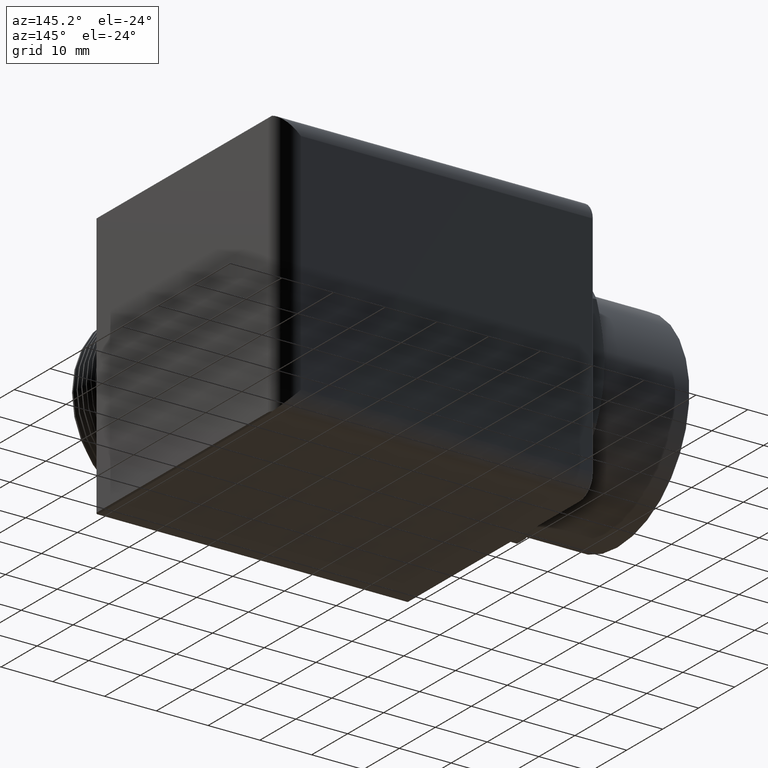
[diagram: clean part render]
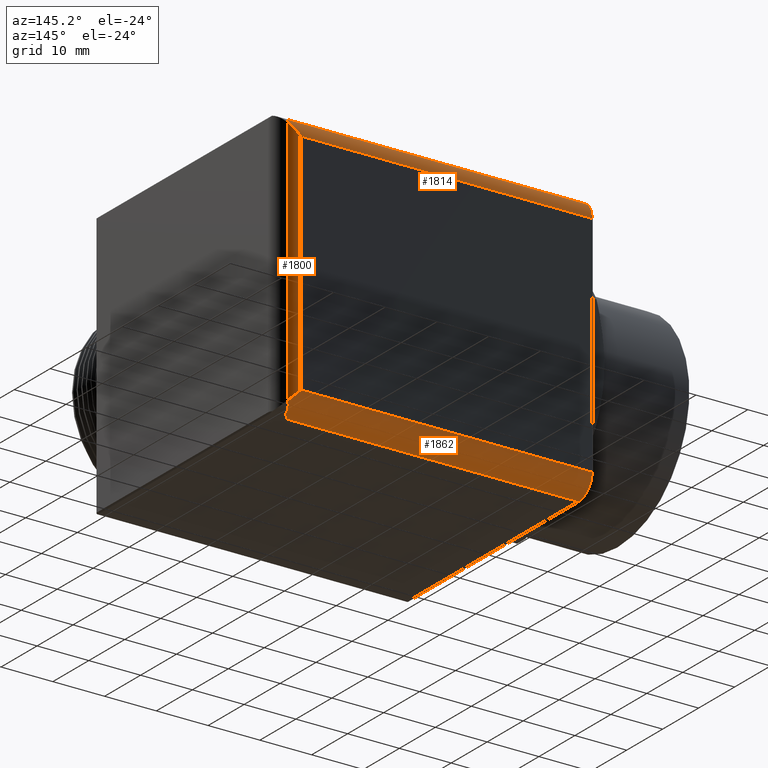
[diagram: same view with one multi-face feature highlighted, each face labeled with its STEP entity id]
A machine part, auxiliary view. The highlighted faces form ONE feature: a constant-radius fillet chain: 3 tangent blend faces with common blend radius 3.7465 mm. The faces share edges in the B-rep.
Their STEP definitions:
[1] entity #1814 (Cylinder):
#1463 = VERTEX_POINT ( 'NONE', #2725 ) ;
#1465 = EDGE_CURVE ( 'NONE', #1463, #1466, #2722, .T. ) ;
#1466 = VERTEX_POINT ( 'NONE', #2724 ) ;
#1496 = EDGE_CURVE ( 'NONE', #1497, #1463, #2839, .T. ) ;
#1497 = VERTEX_POINT ( 'NONE', #2838 ) ;
#1761 = VERTEX_POINT ( 'NONE', #3313 ) ;
#1763 = EDGE_CURVE ( 'NONE', #1761, #1764, #3312, .T. ) ;
#1764 = VERTEX_POINT ( 'NONE', #3308 ) ;
#1794 = EDGE_CURVE ( 'NONE', #1764, #1497, #3376, .T. ) ;
#1795 = ORIENTED_EDGE ( 'NONE', *, *, #1763, .F. ) ;
#1796 = ORIENTED_EDGE ( 'NONE', *, *, #1797, .T. ) ;
#1797 = EDGE_CURVE ( 'NONE', #1761, #1825, #3370, .T. ) ;
#1798 = ORIENTED_EDGE ( 'NONE', *, *, #1824, .F. ) ;
#1799 = ORIENTED_EDGE ( 'NONE', *, *, #1465, .F. ) ;
#1814 = ADVANCED_FACE ( 'NONE', ( #3392 ), #3391, .T. ) ;
#1815 = EDGE_LOOP ( 'NONE', ( #1816, #1817, #1795, #1796, #1798, #1799 ) ) ;
#1816 = ORIENTED_EDGE ( 'NONE', *, *, #1496, .F. ) ;
#1817 = ORIENTED_EDGE ( 'NONE', *, *, #1794, .F. ) ;
#1824 = EDGE_CURVE ( 'NONE', #1466, #1825, #3437, .T. ) ;
#1825 = VERTEX_POINT ( 'NONE', #3433 ) ;
#2721 = CARTESIAN_POINT ( 'NONE',  ( 1.844666666666666700, 0.9166666666666668500, 1.006564333633353400 ) ) ;
#2722 =( BOUNDED_CURVE ( )  B_SPLINE_CURVE ( 3, ( #2721, #2764, #2763, #2762 ),
 .UNSPECIFIED., .F., .T. ) 
 B_SPLINE_CURVE_WITH_KNOTS ( ( 4, 4 ),
 ( 4.372552070930564300, 4.712388980384689700 ),
 .UNSPECIFIED. ) 
 CURVE ( )  GEOMETRIC_REPRESENTATION_ITEM ( )  RATIONAL_B_SPLINE_CURVE ( ( 1.000000000000000000, 0.9903990397689922400, 0.9903990397689922400, 1.000000000000000000 ) ) 
 REPRESENTATION_ITEM ( '' )  );
#2724 = CARTESIAN_POINT ( 'NONE',  ( 1.795499999999999200, 0.8674999999999999400, 1.014999999999999900 ) ) ;
#2725 = CARTESIAN_POINT ( 'NONE',  ( 1.844666666666666700, 0.9166666666666668500, 1.006564333633353400 ) ) ;
#2762 = CARTESIAN_POINT ( 'NONE',  ( 1.795499999999999200, 0.8674999999999999400, 1.014999999999999900 ) ) ;
#2763 = CARTESIAN_POINT ( 'NONE',  ( 1.812289557111489900, 0.8842895571114904900, 1.014999999999999900 ) ) ;
#2764 = CARTESIAN_POINT ( 'NONE',  ( 1.828837320417795000, 0.9008373204177953000, 1.012160852670517500 ) ) ;
#2830 = CARTESIAN_POINT ( 'NONE',  ( 1.844666666666666700, 0.9166666666666668500, 1.006564333633353400 ) ) ;
#2831 = CARTESIAN_POINT ( 'NONE',  ( 1.844666666666666200, 0.9247379555830722600, 1.003710702070501400 ) ) ;
#2832 = CARTESIAN_POINT ( 'NONE',  ( 1.845642229532628200, 0.9323471729041455900, 1.000238020481493600 ) ) ;
#2833 = CARTESIAN_POINT ( 'NONE',  ( 1.849094089113427800, 0.9467680561163973600, 0.9921640011973513800 ) ) ;
#2834 = CARTESIAN_POINT ( 'NONE',  ( 1.851602629892202600, 0.9535805845397226100, 0.9875346601012713300 ) ) ;
#2835 = CARTESIAN_POINT ( 'NONE',  ( 1.860576552260889700, 0.9720066008092619300, 0.9727728218896291000 ) ) ;
#2836 = CARTESIAN_POINT ( 'NONE',  ( 1.868673982908408000, 0.9821408473058225200, 0.9613966408289765800 ) ) ;
#2837 = CARTESIAN_POINT ( 'NONE',  ( 1.877561747821720400, 0.9900647565348390500, 0.9495617478217202000 ) ) ;
#2838 = CARTESIAN_POINT ( 'NONE',  ( 1.877561747821720400, 0.9900647565348390500, 0.9495617478217202000 ) ) ;
#2839 = B_SPLINE_CURVE_WITH_KNOTS ( 'NONE', 3,
 ( #2837, #2836, #2835, #2834, #2833, #2832, #2831, #2830 ),
 .UNSPECIFIED., .F., .F.,
 ( 4, 2, 2, 4 ),
 ( 0.002773185288328189100, 0.004065684369866610400, 0.004711933910635828600, 0.005358183451405046000 ),
 .UNSPECIFIED. ) ;
#3308 = CARTESIAN_POINT ( 'NONE',  ( 1.795500000000000100, 1.014999999999999900, 0.8674999999999999400 ) ) ;
#3309 = DIRECTION ( 'NONE',  ( 1.000000000000000000, 0.0000000000000000000, 0.0000000000000000000 ) ) ;
#3310 = VECTOR ( 'NONE', #3309, 39.37007874015748100 ) ;
#3311 = CARTESIAN_POINT ( 'NONE',  ( -0.4299000000000000600, 1.014999999999999900, 0.8674999999999999400 ) ) ;
#3312 = LINE ( 'NONE', #3311, #3310 ) ;
#3313 = CARTESIAN_POINT ( 'NONE',  ( -0.4199000000000000000, 1.014999999999999900, 0.8674999999999999400 ) ) ;
#3366 = DIRECTION ( 'NONE',  ( 0.0000000000000000000, 0.0000000000000000000, -1.000000000000000000 ) ) ;
#3367 = DIRECTION ( 'NONE',  ( 1.000000000000000000, 0.0000000000000000000, 0.0000000000000000000 ) ) ;
#3368 = CARTESIAN_POINT ( 'NONE',  ( -0.4199000000000000500, 0.8674999999999999400, 0.8674999999999999400 ) ) ;
#3369 = AXIS2_PLACEMENT_3D ( 'NONE', #3368, #3367, #3366 ) ;
#3370 = CIRCLE ( 'NONE', #3369, 0.1474999999999999900 ) ;
#3372 = CARTESIAN_POINT ( 'NONE',  ( 1.877561747821720400, 0.9900647565348390500, 0.9495617478217202000 ) ) ;
#3373 = CARTESIAN_POINT ( 'NONE',  ( 1.853101530997177700, 1.006441798365372400, 0.9251015309971777300 ) ) ;
#3374 = CARTESIAN_POINT ( 'NONE',  ( 1.824936536926457000, 1.014999999999999900, 0.8969365369264571400 ) ) ;
#3375 = CARTESIAN_POINT ( 'NONE',  ( 1.795500000000000100, 1.014999999999999900, 0.8674999999999999400 ) ) ;
#3376 =( BOUNDED_CURVE ( )  B_SPLINE_CURVE ( 3, ( #3375, #3374, #3373, #3372 ),
 .UNSPECIFIED., .F., .T. ) 
 B_SPLINE_CURVE_WITH_KNOTS ( ( 4, 4 ),
 ( 4.712388980384689700, 5.302376716956534800 ),
 .UNSPECIFIED. ) 
 CURVE ( )  GEOMETRIC_REPRESENTATION_ITEM ( )  RATIONAL_B_SPLINE_CURVE ( ( 1.000000000000000000, 0.9712026166911058600, 0.9712026166911058600, 1.000000000000000000 ) ) 
 REPRESENTATION_ITEM ( '' )  );
#3386 = DIRECTION ( 'NONE',  ( 0.0000000000000000000, 0.0000000000000000000, 1.000000000000000000 ) ) ;
#3387 = DIRECTION ( 'NONE',  ( -1.000000000000000000, 0.0000000000000000000, 0.0000000000000000000 ) ) ;
#3388 = CARTESIAN_POINT ( 'NONE',  ( 1.943000000000000100, 0.8674999999999999400, 0.8674999999999999400 ) ) ;
#3389 = AXIS2_PLACEMENT_3D ( 'NONE', #3388, #3387, #3386 ) ;
#3391 = CYLINDRICAL_SURFACE ( 'NONE', #3389, 0.1474999999999999900 ) ;
#3392 = FACE_OUTER_BOUND ( 'NONE', #1815, .T. ) ;
#3433 = CARTESIAN_POINT ( 'NONE',  ( -0.4199000000000000500, 0.8674999999999999400, 1.014999999999999900 ) ) ;
#3434 = DIRECTION ( 'NONE',  ( -1.000000000000000000, 0.0000000000000000000, 0.0000000000000000000 ) ) ;
#3435 = VECTOR ( 'NONE', #3434, 39.37007874015748100 ) ;
#3436 = CARTESIAN_POINT ( 'NONE',  ( 1.943000000000000100, 0.8674999999999999400, 1.014999999999999900 ) ) ;
#3437 = LINE ( 'NONE', #3436, #3435 ) ;
[2] entity #1800 (Cylinder):
#1476 = EDGE_CURVE ( 'NONE', #1500, #1497, #2788, .T. ) ;
#1497 = VERTEX_POINT ( 'NONE', #2838 ) ;
#1500 = VERTEX_POINT ( 'NONE', #2840 ) ;
#1757 = VERTEX_POINT ( 'NONE', #3319 ) ;
#1764 = VERTEX_POINT ( 'NONE', #3308 ) ;
#1794 = EDGE_CURVE ( 'NONE', #1764, #1497, #3376, .T. ) ;
#1800 = ADVANCED_FACE ( 'NONE', ( #3371 ), #3364, .T. ) ;
#1801 = EDGE_LOOP ( 'NONE', ( #1802, #1803, #1805, #1861 ) ) ;
#1802 = ORIENTED_EDGE ( 'NONE', *, *, #1476, .F. ) ;
#1803 = ORIENTED_EDGE ( 'NONE', *, *, #1804, .F. ) ;
#1804 = EDGE_CURVE ( 'NONE', #1757, #1500, #3360, .T. ) ;
#1805 = ORIENTED_EDGE ( 'NONE', *, *, #1818, .F. ) ;
#1818 = EDGE_CURVE ( 'NONE', #1764, #1757, #3390, .T. ) ;
#1861 = ORIENTED_EDGE ( 'NONE', *, *, #1794, .T. ) ;
#2784 = DIRECTION ( 'NONE',  ( 0.0000000000000000000, 0.0000000000000000000, 1.000000000000000000 ) ) ;
#2785 = VECTOR ( 'NONE', #2784, 39.37007874015748100 ) ;
#2786 = CARTESIAN_POINT ( 'NONE',  ( 1.877561747821720400, 0.9900647565348390500, -0.0001968503937008476800 ) ) ;
#2788 = LINE ( 'NONE', #2786, #2785 ) ;
#2838 = CARTESIAN_POINT ( 'NONE',  ( 1.877561747821720400, 0.9900647565348390500, 0.9495617478217202000 ) ) ;
#2840 = CARTESIAN_POINT ( 'NONE',  ( 1.877561747821720400, 0.9900647565348390500, -0.9495617478217202000 ) ) ;
#3308 = CARTESIAN_POINT ( 'NONE',  ( 1.795500000000000100, 1.014999999999999900, 0.8674999999999999400 ) ) ;
#3319 = CARTESIAN_POINT ( 'NONE',  ( 1.795500000000000100, 1.014999999999999900, -0.8674999999999999400 ) ) ;
#3358 = CARTESIAN_POINT ( 'NONE',  ( 1.824936536926457000, 1.014999999999999900, -0.8969365369264571400 ) ) ;
#3359 = CARTESIAN_POINT ( 'NONE',  ( 1.795500000000000100, 1.014999999999999900, -0.8674999999999999400 ) ) ;
#3360 =( BOUNDED_CURVE ( )  B_SPLINE_CURVE ( 3, ( #3359, #3358, #3403, #3402 ),
 .UNSPECIFIED., .F., .T. ) 
 B_SPLINE_CURVE_WITH_KNOTS ( ( 4, 4 ),
 ( 1.570796326794896600, 2.160784063366741700 ),
 .UNSPECIFIED. ) 
 CURVE ( )  GEOMETRIC_REPRESENTATION_ITEM ( )  RATIONAL_B_SPLINE_CURVE ( ( 1.000000000000000000, 0.9712026166911058600, 0.9712026166911058600, 1.000000000000000000 ) ) 
 REPRESENTATION_ITEM ( '' )  );
#3361 = DIRECTION ( 'NONE',  ( 1.000000000000000000, 0.0000000000000000000, 0.0000000000000000000 ) ) ;
#3362 = DIRECTION ( 'NONE',  ( 0.0000000000000000000, 0.0000000000000000000, 1.000000000000000000 ) ) ;
#3363 = AXIS2_PLACEMENT_3D ( 'NONE', #3365, #3362, #3361 ) ;
#3364 = CYLINDRICAL_SURFACE ( 'NONE', #3363, 0.1474999999999999900 ) ;
#3365 = CARTESIAN_POINT ( 'NONE',  ( 1.795500000000000100, 0.8674999999999999400, 1.014999999999999900 ) ) ;
#3371 = FACE_OUTER_BOUND ( 'NONE', #1801, .T. ) ;
#3372 = CARTESIAN_POINT ( 'NONE',  ( 1.877561747821720400, 0.9900647565348390500, 0.9495617478217202000 ) ) ;
#3373 = CARTESIAN_POINT ( 'NONE',  ( 1.853101530997177700, 1.006441798365372400, 0.9251015309971777300 ) ) ;
#3374 = CARTESIAN_POINT ( 'NONE',  ( 1.824936536926457000, 1.014999999999999900, 0.8969365369264571400 ) ) ;
#3375 = CARTESIAN_POINT ( 'NONE',  ( 1.795500000000000100, 1.014999999999999900, 0.8674999999999999400 ) ) ;
#3376 =( BOUNDED_CURVE ( )  B_SPLINE_CURVE ( 3, ( #3375, #3374, #3373, #3372 ),
 .UNSPECIFIED., .F., .T. ) 
 B_SPLINE_CURVE_WITH_KNOTS ( ( 4, 4 ),
 ( 4.712388980384689700, 5.302376716956534800 ),
 .UNSPECIFIED. ) 
 CURVE ( )  GEOMETRIC_REPRESENTATION_ITEM ( )  RATIONAL_B_SPLINE_CURVE ( ( 1.000000000000000000, 0.9712026166911058600, 0.9712026166911058600, 1.000000000000000000 ) ) 
 REPRESENTATION_ITEM ( '' )  );
#3383 = DIRECTION ( 'NONE',  ( 0.0000000000000000000, 0.0000000000000000000, -1.000000000000000000 ) ) ;
#3384 = VECTOR ( 'NONE', #3383, 39.37007874015748100 ) ;
#3385 = CARTESIAN_POINT ( 'NONE',  ( 1.795500000000000100, 1.014999999999999900, -1.014999999999999900 ) ) ;
#3390 = LINE ( 'NONE', #3385, #3384 ) ;
#3402 = CARTESIAN_POINT ( 'NONE',  ( 1.877561747821720400, 0.9900647565348390500, -0.9495617478217202000 ) ) ;
#3403 = CARTESIAN_POINT ( 'NONE',  ( 1.853101530997177700, 1.006441798365372400, -0.9251015309971777300 ) ) ;
[3] entity #1862 (Cylinder):
#1101 = CARTESIAN_POINT ( 'NONE',  ( 1.795499999999999200, 0.8674999999999999400, -1.014999999999999900 ) ) ;
#1459 = EDGE_CURVE ( 'NONE', #3871, #1460, #2735, .T. ) ;
#1460 = VERTEX_POINT ( 'NONE', #2734 ) ;
#1474 = EDGE_CURVE ( 'NONE', #1460, #1500, #2747, .T. ) ;
#1500 = VERTEX_POINT ( 'NONE', #2840 ) ;
#1756 = EDGE_CURVE ( 'NONE', #1757, #1758, #3323, .T. ) ;
#1757 = VERTEX_POINT ( 'NONE', #3319 ) ;
#1758 = VERTEX_POINT ( 'NONE', #3318 ) ;
#1790 = ORIENTED_EDGE ( 'NONE', *, *, #1756, .F. ) ;
#1791 = ORIENTED_EDGE ( 'NONE', *, *, #1804, .T. ) ;
#1804 = EDGE_CURVE ( 'NONE', #1757, #1500, #3360, .T. ) ;
#1811 = VERTEX_POINT ( 'NONE', #3397 ) ;
#1813 = EDGE_CURVE ( 'NONE', #1811, #3871, #3396, .T. ) ;
#1862 = ADVANCED_FACE ( 'NONE', ( #3451 ), #3450, .T. ) ;
#1863 = EDGE_LOOP ( 'NONE', ( #1864, #1865, #1866, #1867, #1790, #1791 ) ) ;
#1864 = ORIENTED_EDGE ( 'NONE', *, *, #1474, .F. ) ;
#1865 = ORIENTED_EDGE ( 'NONE', *, *, #1459, .F. ) ;
#1866 = ORIENTED_EDGE ( 'NONE', *, *, #1813, .F. ) ;
#1867 = ORIENTED_EDGE ( 'NONE', *, *, #1868, .T. ) ;
#1868 = EDGE_CURVE ( 'NONE', #1811, #1758, #3449, .T. ) ;
#2502 = CARTESIAN_POINT ( 'NONE',  ( 1.860576552260889500, 0.9720066008092621600, -0.9727728218896291000 ) ) ;
#2503 = CARTESIAN_POINT ( 'NONE',  ( 1.851602629892202400, 0.9535805845397226100, -0.9875346601012713300 ) ) ;
#2729 = CARTESIAN_POINT ( 'NONE',  ( 1.844666666666666700, 0.9166666666666668500, -1.006564333633354100 ) ) ;
#2730 = CARTESIAN_POINT ( 'NONE',  ( 1.828837320417795000, 0.9008373204177951800, -1.012160852670517700 ) ) ;
#2731 = CARTESIAN_POINT ( 'NONE',  ( 1.812289557111490100, 0.8842895571114903800, -1.014999999999999900 ) ) ;
#2732 = CARTESIAN_POINT ( 'NONE',  ( 1.795499999999999200, 0.8674999999999999400, -1.014999999999999900 ) ) ;
#2734 = CARTESIAN_POINT ( 'NONE',  ( 1.844666666666666700, 0.9166666666666668500, -1.006564333633354100 ) ) ;
#2735 =( BOUNDED_CURVE ( )  B_SPLINE_CURVE ( 3, ( #2732, #2731, #2730, #2729 ),
 .UNSPECIFIED., .F., .T. ) 
 B_SPLINE_CURVE_WITH_KNOTS ( ( 4, 4 ),
 ( 4.712388980384689700, 5.052225889838813300 ),
 .UNSPECIFIED. ) 
 CURVE ( )  GEOMETRIC_REPRESENTATION_ITEM ( )  RATIONAL_B_SPLINE_CURVE ( ( 1.000000000000000000, 0.9903990397689923500, 0.9903990397689923500, 1.000000000000000000 ) ) 
 REPRESENTATION_ITEM ( '' )  );
#2740 = CARTESIAN_POINT ( 'NONE',  ( 1.849094089113428000, 0.9467680561163973600, -0.9921640011973513800 ) ) ;
#2741 = CARTESIAN_POINT ( 'NONE',  ( 1.845642229532627400, 0.9323471729041455900, -1.000238020481493600 ) ) ;
#2742 = CARTESIAN_POINT ( 'NONE',  ( 1.844666666666666000, 0.9247379555830721500, -1.003710702070500900 ) ) ;
#2743 = CARTESIAN_POINT ( 'NONE',  ( 1.844666666666666700, 0.9166666666666668500, -1.006564333633354100 ) ) ;
#2747 = B_SPLINE_CURVE_WITH_KNOTS ( 'NONE', 3,
 ( #2743, #2742, #2741, #2740, #2503, #2502, #2790, #2789 ),
 .UNSPECIFIED., .F., .F.,
 ( 4, 2, 2, 4 ),
 ( 0.0000000000000000000, 0.0006411589484994933200, 0.001282317896998986600, 0.002564635793997959400 ),
 .UNSPECIFIED. ) ;
#2789 = CARTESIAN_POINT ( 'NONE',  ( 1.877561747821720400, 0.9900647565348390500, -0.9495617478217202000 ) ) ;
#2790 = CARTESIAN_POINT ( 'NONE',  ( 1.868673982908408200, 0.9821408473058229600, -0.9613966408289770200 ) ) ;
#2840 = CARTESIAN_POINT ( 'NONE',  ( 1.877561747821720400, 0.9900647565348390500, -0.9495617478217202000 ) ) ;
#3318 = CARTESIAN_POINT ( 'NONE',  ( -0.4199000000000000000, 1.014999999999999900, -0.8674999999999999400 ) ) ;
#3319 = CARTESIAN_POINT ( 'NONE',  ( 1.795500000000000100, 1.014999999999999900, -0.8674999999999999400 ) ) ;
#3320 = DIRECTION ( 'NONE',  ( -1.000000000000000000, 0.0000000000000000000, 0.0000000000000000000 ) ) ;
#3321 = VECTOR ( 'NONE', #3320, 39.37007874015748100 ) ;
#3322 = CARTESIAN_POINT ( 'NONE',  ( -0.4299000000000000600, 1.014999999999999900, -0.8674999999999999400 ) ) ;
#3323 = LINE ( 'NONE', #3322, #3321 ) ;
#3358 = CARTESIAN_POINT ( 'NONE',  ( 1.824936536926457000, 1.014999999999999900, -0.8969365369264571400 ) ) ;
#3359 = CARTESIAN_POINT ( 'NONE',  ( 1.795500000000000100, 1.014999999999999900, -0.8674999999999999400 ) ) ;
#3360 =( BOUNDED_CURVE ( )  B_SPLINE_CURVE ( 3, ( #3359, #3358, #3403, #3402 ),
 .UNSPECIFIED., .F., .T. ) 
 B_SPLINE_CURVE_WITH_KNOTS ( ( 4, 4 ),
 ( 1.570796326794896600, 2.160784063366741700 ),
 .UNSPECIFIED. ) 
 CURVE ( )  GEOMETRIC_REPRESENTATION_ITEM ( )  RATIONAL_B_SPLINE_CURVE ( ( 1.000000000000000000, 0.9712026166911058600, 0.9712026166911058600, 1.000000000000000000 ) ) 
 REPRESENTATION_ITEM ( '' )  );
#3393 = DIRECTION ( 'NONE',  ( 1.000000000000000000, 0.0000000000000000000, 0.0000000000000000000 ) ) ;
#3394 = VECTOR ( 'NONE', #3393, 39.37007874015748100 ) ;
#3395 = CARTESIAN_POINT ( 'NONE',  ( 1.943000000000000100, 0.8674999999999999400, -1.014999999999999900 ) ) ;
#3396 = LINE ( 'NONE', #3395, #3394 ) ;
#3397 = CARTESIAN_POINT ( 'NONE',  ( -0.4199000000000000500, 0.8674999999999999400, -1.014999999999999900 ) ) ;
#3402 = CARTESIAN_POINT ( 'NONE',  ( 1.877561747821720400, 0.9900647565348390500, -0.9495617478217202000 ) ) ;
#3403 = CARTESIAN_POINT ( 'NONE',  ( 1.853101530997177700, 1.006441798365372400, -0.9251015309971777300 ) ) ;
#3441 = DIRECTION ( 'NONE',  ( 0.0000000000000000000, 0.0000000000000000000, -1.000000000000000000 ) ) ;
#3442 = DIRECTION ( 'NONE',  ( 1.000000000000000000, 0.0000000000000000000, 0.0000000000000000000 ) ) ;
#3443 = CARTESIAN_POINT ( 'NONE',  ( -0.4199000000000000000, 0.8674999999999999400, -0.8674999999999999400 ) ) ;
#3444 = AXIS2_PLACEMENT_3D ( 'NONE', #3443, #3442, #3441 ) ;
#3445 = DIRECTION ( 'NONE',  ( 0.0000000000000000000, 0.0000000000000000000, -1.000000000000000000 ) ) ;
#3446 = DIRECTION ( 'NONE',  ( 1.000000000000000000, 0.0000000000000000000, 0.0000000000000000000 ) ) ;
#3447 = CARTESIAN_POINT ( 'NONE',  ( -0.4299000000000000600, 0.8674999999999999400, -0.8674999999999999400 ) ) ;
#3448 = AXIS2_PLACEMENT_3D ( 'NONE', #3447, #3446, #3445 ) ;
#3449 = CIRCLE ( 'NONE', #3444, 0.1474999999999999900 ) ;
#3450 = CYLINDRICAL_SURFACE ( 'NONE', #3448, 0.1474999999999999900 ) ;
#3451 = FACE_OUTER_BOUND ( 'NONE', #1863, .T. ) ;
#3871 = VERTEX_POINT ( 'NONE', #1101 ) ;